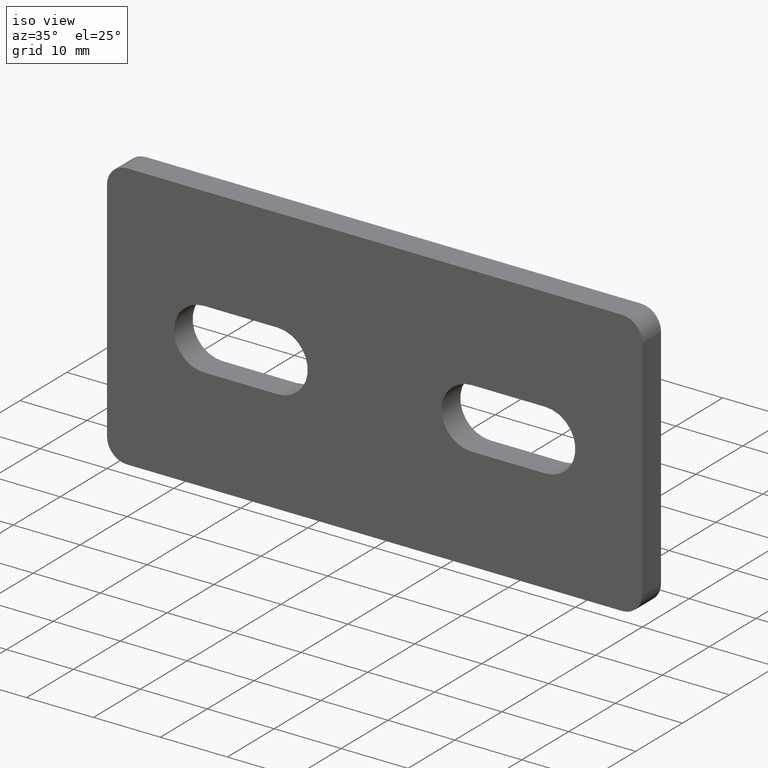
[diagram: clean part render]
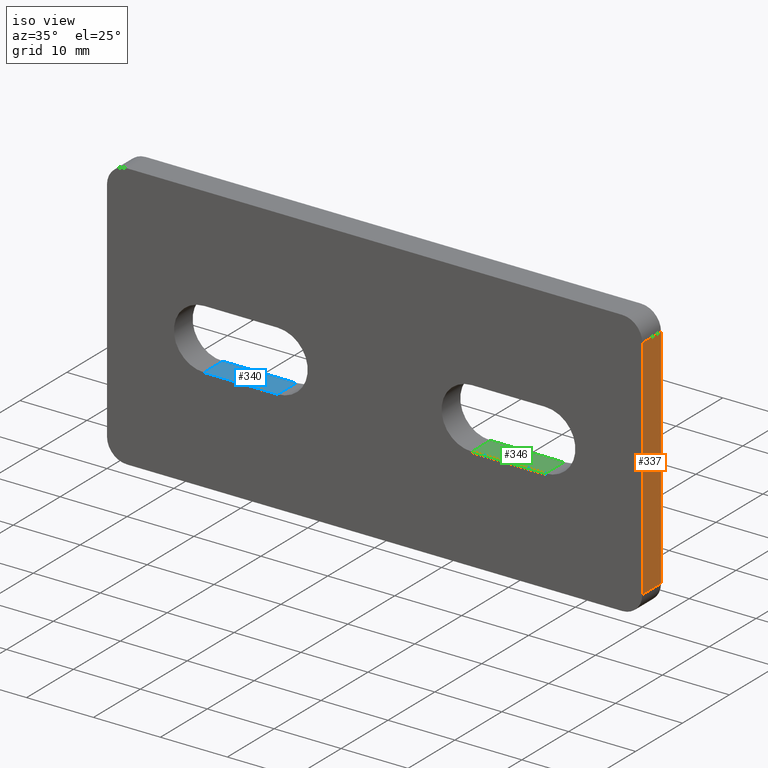
[diagram: same view with three faces highlighted in distinct colors, each labeled with its STEP entity id]
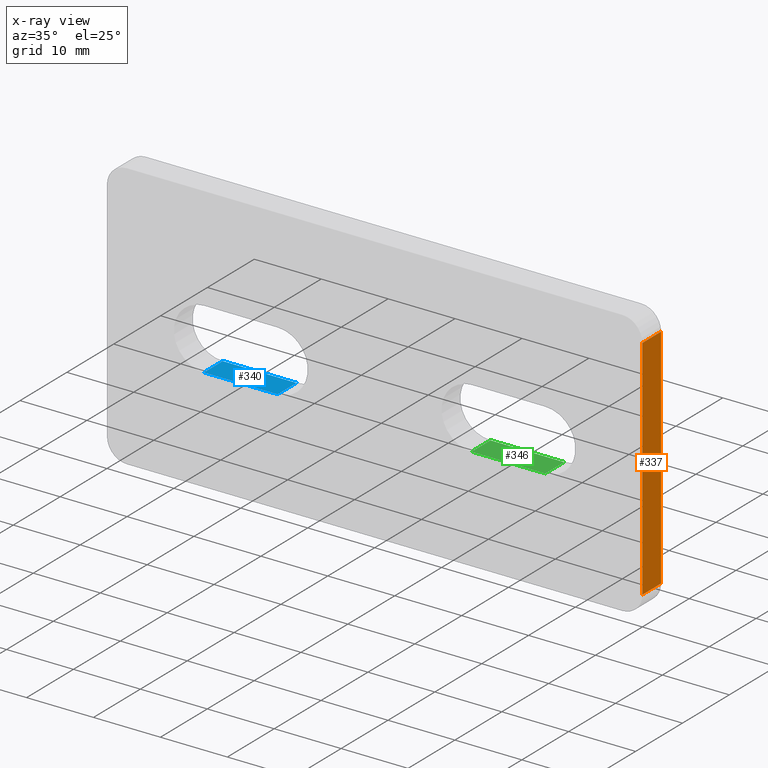
[diagram: x-ray of the same camera — body ghosted, the three highlighted faces saturated]
A machine part, iso view with three faces highlighted in distinct colors.
The next image is the same camera in x-ray (body ghosted, the three faces saturated) — at least one of them is partly hidden behind the body in this view.
Their STEP definitions:

[orange] entity #337 — the highlighted planar face has unit normal (-1, 0, 0).
#31=FACE_OUTER_BOUND('',#53,.T.);
#53=EDGE_LOOP('',(#267,#268,#269,#270));
#86=LINE('',#526,#118);
#93=LINE('',#555,#125);
#103=LINE('',#584,#135);
#104=LINE('',#585,#136);
#118=VECTOR('',#421,1000.);
#125=VECTOR('',#444,1000.);
#135=VECTOR('',#472,1000.);
#136=VECTOR('',#473,1000.);
#153=VERTEX_POINT('',#523);
#154=VERTEX_POINT('',#525);
#167=VERTEX_POINT('',#552);
#168=VERTEX_POINT('',#554);
#185=EDGE_CURVE('',#153,#154,#86,.T.);
#199=EDGE_CURVE('',#168,#167,#93,.T.);
#215=EDGE_CURVE('',#167,#154,#103,.T.);
#216=EDGE_CURVE('',#153,#168,#104,.T.);
#267=ORIENTED_EDGE('',*,*,#199,.T.);
#268=ORIENTED_EDGE('',*,*,#215,.T.);
#269=ORIENTED_EDGE('',*,*,#185,.F.);
#270=ORIENTED_EDGE('',*,*,#216,.T.);
#327=PLANE('',#394);
#337=ADVANCED_FACE('',(#31),#327,.F.);
#394=AXIS2_PLACEMENT_3D('',#583,#470,#471);
#421=DIRECTION('',(0.,0.,-1.));
#444=DIRECTION('',(0.,0.,-1.));
#470=DIRECTION('center_axis',(-1.,0.,0.));
#471=DIRECTION('ref_axis',(0.,0.,1.));
#472=DIRECTION('',(0.,1.,0.));
#473=DIRECTION('',(0.,-1.,0.));
#523=CARTESIAN_POINT('',(40.,4.,17.));
#525=CARTESIAN_POINT('',(40.,4.,-17.));
#526=CARTESIAN_POINT('',(40.,4.,20.));
#552=CARTESIAN_POINT('',(40.,0.,-17.));
#554=CARTESIAN_POINT('',(40.,0.,17.));
#555=CARTESIAN_POINT('',(40.,0.,20.));
#583=CARTESIAN_POINT('Origin',(40.,4.,20.));
#584=CARTESIAN_POINT('',(40.,4.,-17.));
#585=CARTESIAN_POINT('',(40.,4.,17.));

[blue] entity #340 — the highlighted planar face has unit normal (0, 0, 1).
#34=FACE_OUTER_BOUND('',#56,.T.);
#56=EDGE_LOOP('',(#279,#280,#281,#282));
#90=LINE('',#543,#122);
#98=LINE('',#575,#130);
#108=LINE('',#591,#140);
#109=LINE('',#593,#141);
#122=VECTOR('',#435,1000.);
#130=VECTOR('',#459,1000.);
#140=VECTOR('',#481,1000.);
#141=VECTOR('',#484,1000.);
#160=VERTEX_POINT('',#537);
#162=VERTEX_POINT('',#541);
#177=VERTEX_POINT('',#572);
#178=VERTEX_POINT('',#574);
#194=EDGE_CURVE('',#160,#162,#90,.T.);
#209=EDGE_CURVE('',#177,#178,#98,.T.);
#220=EDGE_CURVE('',#160,#177,#108,.T.);
#221=EDGE_CURVE('',#162,#178,#109,.T.);
#279=ORIENTED_EDGE('',*,*,#209,.F.);
#280=ORIENTED_EDGE('',*,*,#220,.F.);
#281=ORIENTED_EDGE('',*,*,#194,.T.);
#282=ORIENTED_EDGE('',*,*,#221,.T.);
#329=PLANE('',#397);
#340=ADVANCED_FACE('',(#34),#329,.T.);
#397=AXIS2_PLACEMENT_3D('',#592,#482,#483);
#435=DIRECTION('',(-1.,0.,0.));
#459=DIRECTION('',(-1.,0.,0.));
#481=DIRECTION('',(0.,-1.,0.));
#482=DIRECTION('center_axis',(0.,0.,1.));
#483=DIRECTION('ref_axis',(1.,0.,0.));
#484=DIRECTION('',(0.,-1.,0.));
#537=CARTESIAN_POINT('',(-14.5,4.,-4.5));
#541=CARTESIAN_POINT('',(-25.5,4.,-4.5));
#543=CARTESIAN_POINT('',(-14.5,4.,-4.5));
#572=CARTESIAN_POINT('',(-14.5,0.,-4.5));
#574=CARTESIAN_POINT('',(-25.5,0.,-4.5));
#575=CARTESIAN_POINT('',(-14.5,0.,-4.5));
#591=CARTESIAN_POINT('',(-14.5,4.,-4.5));
#592=CARTESIAN_POINT('Origin',(-14.5,4.,-4.5));
#593=CARTESIAN_POINT('',(-25.5,4.,-4.5));

[green] entity #346 — the highlighted planar face has unit normal (0, 0, 1).
#40=FACE_OUTER_BOUND('',#62,.T.);
#62=EDGE_LOOP('',(#303,#304,#305,#306));
#87=LINE('',#532,#119);
#95=LINE('',#563,#127);
#111=LINE('',#598,#143);
#114=LINE('',#603,#146);
#119=VECTOR('',#426,1000.);
#127=VECTOR('',#450,1000.);
#143=VECTOR('',#492,1000.);
#146=VECTOR('',#499,1000.);
#155=VERTEX_POINT('',#528);
#157=VERTEX_POINT('',#531);
#171=VERTEX_POINT('',#561);
#172=VERTEX_POINT('',#562);
#188=EDGE_CURVE('',#157,#155,#87,.T.);
#203=EDGE_CURVE('',#171,#172,#95,.T.);
#223=EDGE_CURVE('',#155,#172,#111,.T.);
#226=EDGE_CURVE('',#157,#171,#114,.T.);
#303=ORIENTED_EDGE('',*,*,#203,.F.);
#304=ORIENTED_EDGE('',*,*,#226,.F.);
#305=ORIENTED_EDGE('',*,*,#188,.T.);
#306=ORIENTED_EDGE('',*,*,#223,.T.);
#332=PLANE('',#403);
#346=ADVANCED_FACE('',(#40),#332,.T.);
#403=AXIS2_PLACEMENT_3D('',#604,#500,#501);
#426=DIRECTION('',(-1.,0.,0.));
#450=DIRECTION('',(-1.,0.,0.));
#492=DIRECTION('',(0.,-1.,0.));
#499=DIRECTION('',(0.,-1.,0.));
#500=DIRECTION('center_axis',(0.,0.,1.));
#501=DIRECTION('ref_axis',(1.,0.,0.));
#528=CARTESIAN_POINT('',(14.5,4.,-4.5));
#531=CARTESIAN_POINT('',(25.5,4.,-4.5));
#532=CARTESIAN_POINT('',(14.5,4.,-4.5));
#561=CARTESIAN_POINT('',(25.5,0.,-4.5));
#562=CARTESIAN_POINT('',(14.5,0.,-4.5));
#563=CARTESIAN_POINT('',(14.5,0.,-4.5));
#598=CARTESIAN_POINT('',(14.5,4.,-4.5));
#603=CARTESIAN_POINT('',(25.5,4.,-4.5));
#604=CARTESIAN_POINT('Origin',(14.5,4.,-4.5));